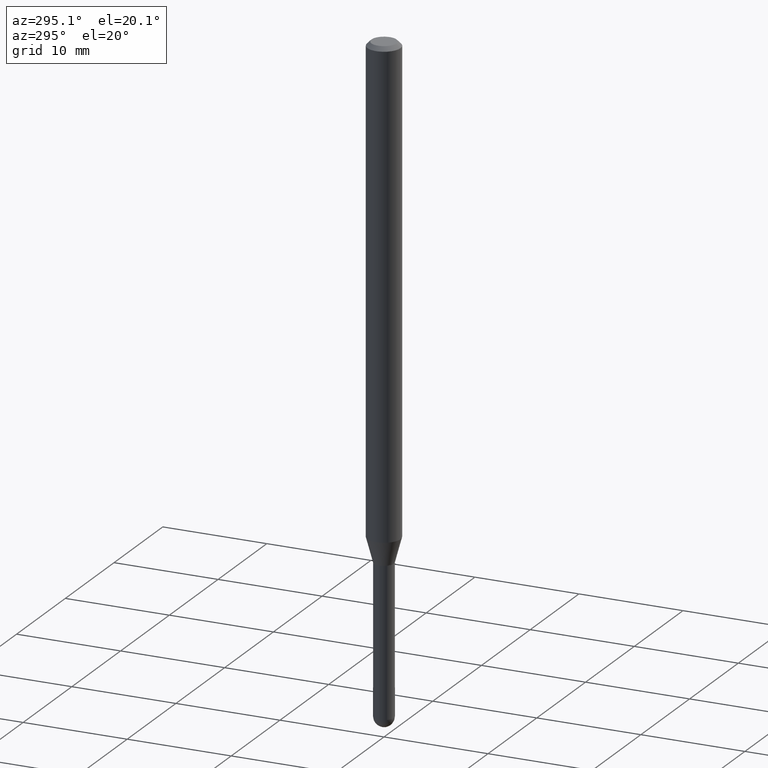
[diagram: clean part render]
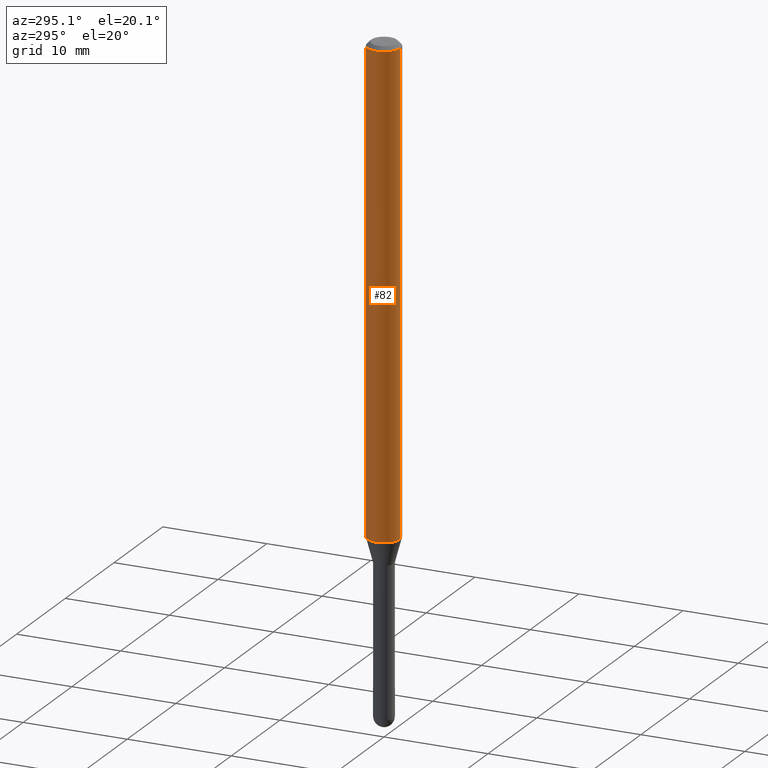
[diagram: same view with one face highlighted and labeled with its STEP entity id]
A machine part, auxiliary view. The second image highlights one B-rep face of the part: STEP entity #82.
In plain terms, the highlighted cylindrical surface (edge-blend (fillet) strip) has radius 1.5875 mm, axis along (-0, 0, 1).
Its self-contained STEP definition (entity closure, byte-faithful):
#8 = ORIENTED_EDGE ( 'NONE', *, *, #78, .T. ) ;
#35 = CARTESIAN_POINT ( 'NONE',  ( 4.418074636319489634E-29, -6.308270782063436198E-15, -1.806698729810781057 ) ) ;
#36 = CIRCLE ( 'NONE', #224, 0.06250000000000000000 ) ;
#46 = VECTOR ( 'NONE', #342, 39.37007874015748143 ) ;
#52 = EDGE_CURVE ( 'NONE', #181, #456, #246, .T. ) ;
#66 = CARTESIAN_POINT ( 'NONE',  ( -4.364351673553477397E-16, -0.06250000000000634215, -1.806698729810780835 ) ) ;
#78 = EDGE_CURVE ( 'NONE', #89, #489, #504, .T. ) ;
#80 = CARTESIAN_POINT ( 'NONE',  ( 4.440892098501069896E-16, 0.06249999999999995143, -0.01500000000000028394 ) ) ;
#82 = ADVANCED_FACE ( 'NONE', ( #261 ), #474, .T. ) ;
#89 = VERTEX_POINT ( 'NONE', #66 ) ;
#107 = CARTESIAN_POINT ( 'NONE',  ( 0.000000000000000000, 0.000000000000000000, 0.000000000000000000 ) ) ;
#181 = VERTEX_POINT ( 'NONE', #432 ) ;
#194 = AXIS2_PLACEMENT_3D ( 'NONE', #35, #475, #300 ) ;
#209 = ORIENTED_EDGE ( 'NONE', *, *, #52, .F. ) ;
#222 = DIRECTION ( 'NONE',  ( -2.445385366924015343E-29, 3.491600828614139048E-15, 1.000000000000000000 ) ) ;
#224 = AXIS2_PLACEMENT_3D ( 'NONE', #350, #357, #279 ) ;
#242 = ORIENTED_EDGE ( 'NONE', *, *, #386, .T. ) ;
#246 = LINE ( 'NONE', #416, #46 ) ;
#261 = FACE_OUTER_BOUND ( 'NONE', #330, .T. ) ;
#263 = DIRECTION ( 'NONE',  ( -2.445385366924015343E-29, 3.491600828614139048E-15, 1.000000000000000000 ) ) ;
#279 = DIRECTION ( 'NONE',  ( -6.982962677686265922E-15, -1.000000000000000000, 3.483106191921935554E-15 ) ) ;
#294 = CARTESIAN_POINT ( 'NONE',  ( -4.364351673553916201E-16, -0.06250000000000000000, 2.182250517883836905E-16 ) ) ;
#300 = DIRECTION ( 'NONE',  ( -6.982962677686265922E-15, -1.000000000000000000, 4.370956789862821150E-15 ) ) ;
#330 = EDGE_LOOP ( 'NONE', ( #209, #242, #8, #424 ) ) ;
#342 = DIRECTION ( 'NONE',  ( -2.445385366924015343E-29, 3.491600828614139048E-15, 1.000000000000000000 ) ) ;
#350 = CARTESIAN_POINT ( 'NONE',  ( 3.668078050386039129E-31, -5.237401242921231202E-17, -0.01500000000000006710 ) ) ;
#355 = VECTOR ( 'NONE', #222, 39.37007874015748143 ) ;
#357 = DIRECTION ( 'NONE',  ( -2.445385366924015343E-29, 3.491600828614139048E-15, 1.000000000000000000 ) ) ;
#386 = EDGE_CURVE ( 'NONE', #181, #89, #396, .T. ) ;
#393 = DIRECTION ( 'NONE',  ( -6.982962677686265922E-15, -1.000000000000000000, 3.491600828614139048E-15 ) ) ;
#396 = CIRCLE ( 'NONE', #194, 0.06250000000000000000 ) ;
#402 = EDGE_CURVE ( 'NONE', #456, #489, #36, .T. ) ;
#408 = CARTESIAN_POINT ( 'NONE',  ( -4.364351673553912750E-16, -0.06250000000000005551, -0.01499999999999984852 ) ) ;
#416 = CARTESIAN_POINT ( 'NONE',  ( 4.440892098500625669E-16, 0.06250000000000000000, -2.182250517883836905E-16 ) ) ;
#424 = ORIENTED_EDGE ( 'NONE', *, *, #402, .F. ) ;
#432 = CARTESIAN_POINT ( 'NONE',  ( 4.440892098501064966E-16, 0.06249999999999365785, -1.806698729810781501 ) ) ;
#438 = AXIS2_PLACEMENT_3D ( 'NONE', #107, #263, #393 ) ;
#456 = VERTEX_POINT ( 'NONE', #80 ) ;
#474 = CYLINDRICAL_SURFACE ( 'NONE', #438, 0.06250000000000000000 ) ;
#475 = DIRECTION ( 'NONE',  ( -2.445385366924015343E-29, 3.491600828614139048E-15, 1.000000000000000000 ) ) ;
#489 = VERTEX_POINT ( 'NONE', #408 ) ;
#504 = LINE ( 'NONE', #294, #355 ) ;